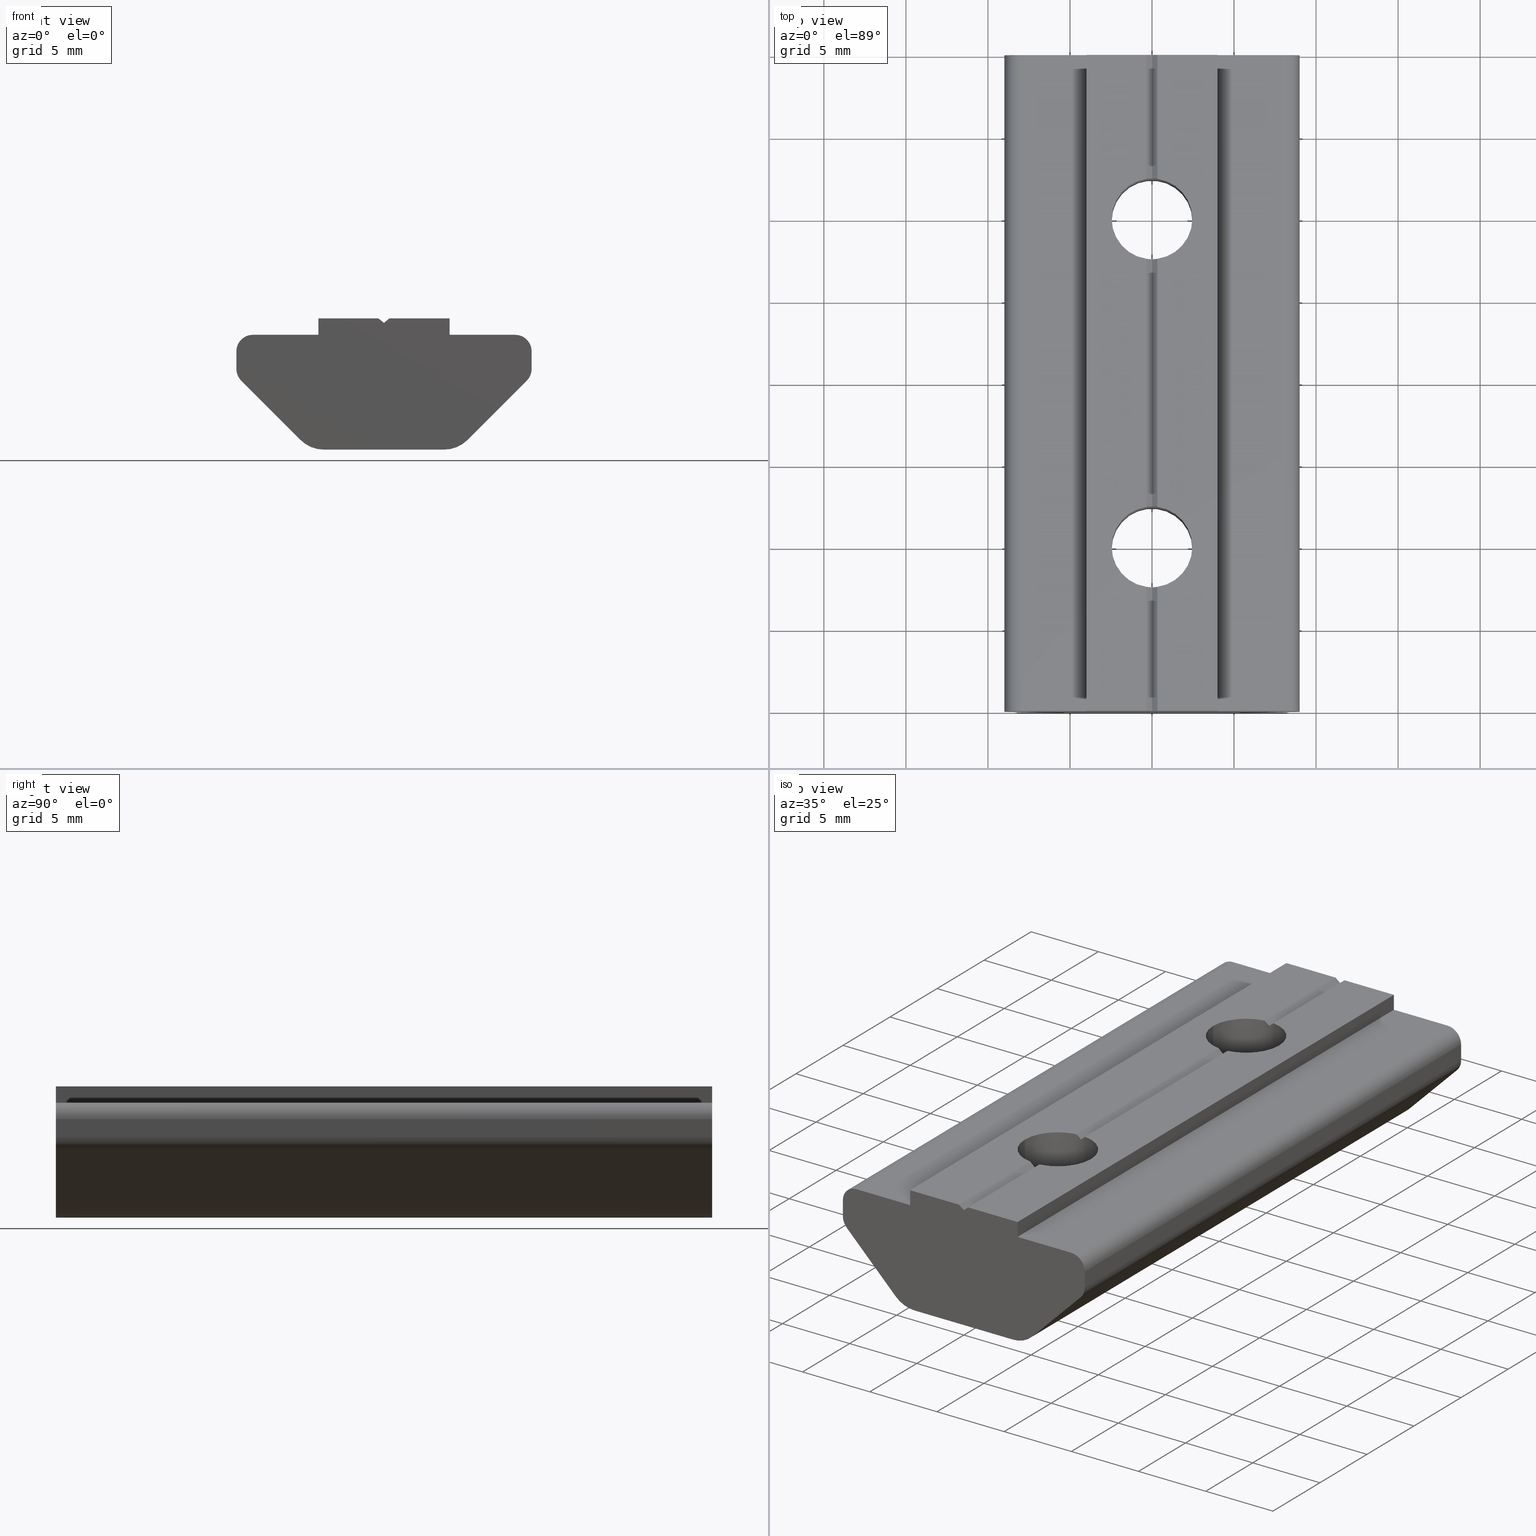
[diagram: canonical four-view strip — front | top / right | iso, engineering-drawing reading convention]
A machine part, canonical four-view strip (front | top / right | iso — engineering-drawing reading convention). The complete STEP part file that produces these views, byte-faithful:
ISO-10303-21;
HEADER;
/* Generated by software containing ST-Developer
 * from STEP Tools, Inc. (www.steptools.com) 
 */

FILE_DESCRIPTION(
/* description */ ('CURSORE ALLUM. L=40 2F M6'),
/* implementation_level */ '2;1');

FILE_NAME(
/* name */ 
'C:\\Users\\tecnico7\\Desktop\\NUOVI DISEGNI 3D\\CDDCU0000008.stp',
/* time_stamp */ '2022-11-18T11:16:16+01:00',
/* author */ ('tecnico7'),
/* organization */ (''),
/* preprocessor_version */ 'ST-DEVELOPER v18.1',
/* originating_system */ 'Autodesk Inventor 2022',
/* authorisation */ '');

FILE_SCHEMA (('AUTOMOTIVE_DESIGN { 1 0 10303 214 3 1 1 }'));
ENDSEC;

DATA;
#10=MECHANICAL_DESIGN_GEOMETRIC_PRESENTATION_REPRESENTATION('',(#13),#967);
#11=SHAPE_REPRESENTATION_RELATIONSHIP('SRR','None',#974,#12);
#12=ADVANCED_BREP_SHAPE_REPRESENTATION('',(#14),#966);
#13=STYLED_ITEM('',(#983),#14);
#14=MANIFOLD_SOLID_BREP('None',#558);
#15=FACE_BOUND('',#77,.T.);
#16=FACE_BOUND('',#78,.T.);
#17=PLANE('',#599);
#18=PLANE('',#600);
#19=PLANE('',#601);
#20=PLANE('',#602);
#21=PLANE('',#603);
#22=PLANE('',#604);
#23=PLANE('',#608);
#24=PLANE('',#612);
#25=PLANE('',#616);
#26=PLANE('',#620);
#27=PLANE('',#624);
#28=PLANE('',#628);
#29=PLANE('',#629);
#30=PLANE('',#630);
#31=PLANE('',#631);
#32=PLANE('',#632);
#33=PLANE('',#633);
#34=PLANE('',#634);
#35=PLANE('',#635);
#36=FACE_OUTER_BOUND('',#63,.T.);
#37=FACE_OUTER_BOUND('',#64,.T.);
#38=FACE_OUTER_BOUND('',#65,.T.);
#39=FACE_OUTER_BOUND('',#66,.T.);
#40=FACE_OUTER_BOUND('',#67,.T.);
#41=FACE_OUTER_BOUND('',#68,.T.);
#42=FACE_OUTER_BOUND('',#69,.T.);
#43=FACE_OUTER_BOUND('',#70,.T.);
#44=FACE_OUTER_BOUND('',#71,.T.);
#45=FACE_OUTER_BOUND('',#72,.T.);
#46=FACE_OUTER_BOUND('',#73,.T.);
#47=FACE_OUTER_BOUND('',#74,.T.);
#48=FACE_OUTER_BOUND('',#75,.T.);
#49=FACE_OUTER_BOUND('',#76,.T.);
#50=FACE_OUTER_BOUND('',#79,.T.);
#51=FACE_OUTER_BOUND('',#80,.T.);
#52=FACE_OUTER_BOUND('',#81,.T.);
#53=FACE_OUTER_BOUND('',#82,.T.);
#54=FACE_OUTER_BOUND('',#83,.T.);
#55=FACE_OUTER_BOUND('',#84,.T.);
#56=FACE_OUTER_BOUND('',#85,.T.);
#57=FACE_OUTER_BOUND('',#86,.T.);
#58=FACE_OUTER_BOUND('',#87,.T.);
#59=FACE_OUTER_BOUND('',#88,.T.);
#60=FACE_OUTER_BOUND('',#89,.T.);
#61=FACE_OUTER_BOUND('',#90,.T.);
#62=FACE_OUTER_BOUND('',#91,.T.);
#63=EDGE_LOOP('',(#361,#362,#363,#364,#365,#366,#367,#368,#369,#370));
#64=EDGE_LOOP('',(#371,#372,#373,#374,#375,#376,#377,#378,#379,#380));
#65=EDGE_LOOP('',(#381,#382,#383,#384,#385,#386,#387,#388,#389,#390));
#66=EDGE_LOOP('',(#391,#392,#393,#394));
#67=EDGE_LOOP('',(#395,#396,#397,#398));
#68=EDGE_LOOP('',(#399,#400,#401,#402));
#69=EDGE_LOOP('',(#403,#404,#405,#406));
#70=EDGE_LOOP('',(#407,#408,#409,#410));
#71=EDGE_LOOP('',(#411,#412,#413,#414));
#72=EDGE_LOOP('',(#415,#416,#417,#418));
#73=EDGE_LOOP('',(#419,#420,#421,#422));
#74=EDGE_LOOP('',(#423,#424,#425,#426));
#75=EDGE_LOOP('',(#427,#428,#429,#430));
#76=EDGE_LOOP('',(#431,#432,#433,#434));
#77=EDGE_LOOP('',(#435));
#78=EDGE_LOOP('',(#436));
#79=EDGE_LOOP('',(#437,#438,#439,#440));
#80=EDGE_LOOP('',(#441,#442,#443,#444));
#81=EDGE_LOOP('',(#445,#446,#447,#448));
#82=EDGE_LOOP('',(#449,#450,#451,#452));
#83=EDGE_LOOP('',(#453,#454,#455,#456));
#84=EDGE_LOOP('',(#457,#458,#459,#460));
#85=EDGE_LOOP('',(#461,#462,#463,#464));
#86=EDGE_LOOP('',(#465,#466,#467,#468,#469,#470,#471,#472));
#87=EDGE_LOOP('',(#473,#474,#475,#476));
#88=EDGE_LOOP('',(#477,#478,#479,#480));
#89=EDGE_LOOP('',(#481,#482,#483,#484));
#90=EDGE_LOOP('',(#485,#486,#487,#488,#489,#490,#491,#492,#493,#494,#495,
#496,#497,#498,#499,#500,#501,#502,#503));
#91=EDGE_LOOP('',(#504,#505,#506,#507,#508,#509,#510,#511,#512,#513,#514,
#515,#516,#517,#518,#519,#520,#521,#522));
#92=LINE('',#817,#145);
#93=LINE('',#835,#146);
#94=LINE('',#839,#147);
#95=LINE('',#841,#148);
#96=LINE('',#843,#149);
#97=LINE('',#845,#150);
#98=LINE('',#847,#151);
#99=LINE('',#848,#152);
#100=LINE('',#850,#153);
#101=LINE('',#852,#154);
#102=LINE('',#855,#155);
#103=LINE('',#856,#156);
#104=LINE('',#859,#157);
#105=LINE('',#860,#158);
#106=LINE('',#864,#159);
#107=LINE('',#866,#160);
#108=LINE('',#868,#161);
#109=LINE('',#869,#162);
#110=LINE('',#874,#163);
#111=LINE('',#878,#164);
#112=LINE('',#880,#165);
#113=LINE('',#881,#166);
#114=LINE('',#886,#167);
#115=LINE('',#890,#168);
#116=LINE('',#892,#169);
#117=LINE('',#893,#170);
#118=LINE('',#898,#171);
#119=LINE('',#902,#172);
#120=LINE('',#904,#173);
#121=LINE('',#905,#174);
#122=LINE('',#910,#175);
#123=LINE('',#914,#176);
#124=LINE('',#916,#177);
#125=LINE('',#917,#178);
#126=LINE('',#922,#179);
#127=LINE('',#926,#180);
#128=LINE('',#928,#181);
#129=LINE('',#929,#182);
#130=LINE('',#934,#183);
#131=LINE('',#938,#184);
#132=LINE('',#940,#185);
#133=LINE('',#941,#186);
#134=LINE('',#944,#187);
#135=LINE('',#946,#188);
#136=LINE('',#947,#189);
#137=LINE('',#950,#190);
#138=LINE('',#951,#191);
#139=LINE('',#952,#192);
#140=LINE('',#955,#193);
#141=LINE('',#956,#194);
#142=LINE('',#958,#195);
#143=LINE('',#960,#196);
#144=LINE('',#961,#197);
#145=VECTOR('',#652,2.4585);
#146=VECTOR('',#671,2.4585);
#147=VECTOR('',#678,15.0473625990607);
#148=VECTOR('',#679,7.52368129953035);
#149=VECTOR('',#680,3.65671249820966);
#150=VECTOR('',#681,40.);
#151=VECTOR('',#682,3.65671249820966);
#152=VECTOR('',#683,7.52368129953035);
#153=VECTOR('',#686,15.);
#154=VECTOR('',#689,15.0433105967146);
#155=VECTOR('',#692,7.5);
#156=VECTOR('',#693,0.439391491276567);
#157=VECTOR('',#696,7.52165529835731);
#158=VECTOR('',#697,0.427816213448289);
#159=VECTOR('',#700,3.99999911605113);
#160=VECTOR('',#701,40.);
#161=VECTOR('',#702,3.99999911605113);
#162=VECTOR('',#703,40.);
#163=VECTOR('',#708,40.);
#164=VECTOR('',#713,1.08578619895536);
#165=VECTOR('',#714,40.);
#166=VECTOR('',#715,1.08578619895536);
#167=VECTOR('',#720,40.);
#168=VECTOR('',#725,5.1213192086635);
#169=VECTOR('',#726,40.);
#170=VECTOR('',#727,5.1213192086635);
#171=VECTOR('',#732,40.);
#172=VECTOR('',#737,7.34314412585296);
#173=VECTOR('',#738,40.);
#174=VECTOR('',#739,7.34314412585296);
#175=VECTOR('',#744,40.);
#176=VECTOR('',#749,5.12131921573452);
#177=VECTOR('',#750,40.);
#178=VECTOR('',#751,5.12131921573452);
#179=VECTOR('',#756,40.);
#180=VECTOR('',#761,1.08578620197102);
#181=VECTOR('',#762,40.);
#182=VECTOR('',#763,1.08578620197102);
#183=VECTOR('',#768,40.);
#184=VECTOR('',#773,3.99999910794887);
#185=VECTOR('',#774,40.);
#186=VECTOR('',#775,3.99999910794887);
#187=VECTOR('',#778,0.999999778000075);
#188=VECTOR('',#779,40.);
#189=VECTOR('',#780,0.999999778000076);
#190=VECTOR('',#783,7.5216552983573);
#191=VECTOR('',#784,3.67165853489162);
#192=VECTOR('',#785,3.67165853489162);
#193=VECTOR('',#788,7.5);
#194=VECTOR('',#789,0.427816213448289);
#195=VECTOR('',#792,0.439391491276567);
#196=VECTOR('',#795,0.99999977799996);
#197=VECTOR('',#796,0.99999977799996);
#198=CIRCLE('',#584,2.4585);
#199=CIRCLE('',#587,2.4585);
#200=CIRCLE('',#588,2.4585);
#201=CIRCLE('',#589,2.4585);
#202=CIRCLE('',#593,2.4585);
#203=CIRCLE('',#596,2.4585);
#204=CIRCLE('',#597,2.4585);
#205=CIRCLE('',#598,2.4585);
#206=CIRCLE('',#606,0.999999782051095);
#207=CIRCLE('',#607,0.999999782051095);
#208=CIRCLE('',#610,0.999999764990546);
#209=CIRCLE('',#611,0.999999764990546);
#210=CIRCLE('',#614,1.99999952998076);
#211=CIRCLE('',#615,1.99999952998076);
#212=CIRCLE('',#618,1.99999952998079);
#213=CIRCLE('',#619,1.99999952998079);
#214=CIRCLE('',#622,0.999999764990531);
#215=CIRCLE('',#623,0.999999764990531);
#216=CIRCLE('',#626,0.999999782051127);
#217=CIRCLE('',#627,0.999999782051127);
#218=ELLIPSE('',#582,3.14676989404295,2.4585);
#219=ELLIPSE('',#583,3.20333895379445,2.4585);
#220=ELLIPSE('',#585,3.20333895379445,2.4585);
#221=ELLIPSE('',#586,3.14676989404295,2.4585);
#222=ELLIPSE('',#591,3.14676989404295,2.4585);
#223=ELLIPSE('',#592,3.20333895379445,2.4585);
#224=ELLIPSE('',#594,3.20333895379445,2.4585);
#225=ELLIPSE('',#595,3.14676989404295,2.4585);
#226=VERTEX_POINT('',#803);
#227=VERTEX_POINT('',#804);
#228=VERTEX_POINT('',#806);
#229=VERTEX_POINT('',#808);
#230=VERTEX_POINT('',#810);
#231=VERTEX_POINT('',#812);
#232=VERTEX_POINT('',#814);
#233=VERTEX_POINT('',#816);
#234=VERTEX_POINT('',#821);
#235=VERTEX_POINT('',#822);
#236=VERTEX_POINT('',#824);
#237=VERTEX_POINT('',#826);
#238=VERTEX_POINT('',#828);
#239=VERTEX_POINT('',#830);
#240=VERTEX_POINT('',#832);
#241=VERTEX_POINT('',#834);
#242=VERTEX_POINT('',#840);
#243=VERTEX_POINT('',#842);
#244=VERTEX_POINT('',#844);
#245=VERTEX_POINT('',#846);
#246=VERTEX_POINT('',#854);
#247=VERTEX_POINT('',#858);
#248=VERTEX_POINT('',#862);
#249=VERTEX_POINT('',#863);
#250=VERTEX_POINT('',#865);
#251=VERTEX_POINT('',#867);
#252=VERTEX_POINT('',#871);
#253=VERTEX_POINT('',#873);
#254=VERTEX_POINT('',#877);
#255=VERTEX_POINT('',#879);
#256=VERTEX_POINT('',#883);
#257=VERTEX_POINT('',#885);
#258=VERTEX_POINT('',#889);
#259=VERTEX_POINT('',#891);
#260=VERTEX_POINT('',#895);
#261=VERTEX_POINT('',#897);
#262=VERTEX_POINT('',#901);
#263=VERTEX_POINT('',#903);
#264=VERTEX_POINT('',#907);
#265=VERTEX_POINT('',#909);
#266=VERTEX_POINT('',#913);
#267=VERTEX_POINT('',#915);
#268=VERTEX_POINT('',#919);
#269=VERTEX_POINT('',#921);
#270=VERTEX_POINT('',#925);
#271=VERTEX_POINT('',#927);
#272=VERTEX_POINT('',#931);
#273=VERTEX_POINT('',#933);
#274=VERTEX_POINT('',#937);
#275=VERTEX_POINT('',#939);
#276=VERTEX_POINT('',#943);
#277=VERTEX_POINT('',#945);
#278=VERTEX_POINT('',#949);
#279=VERTEX_POINT('',#954);
#280=EDGE_CURVE('',#226,#227,#218,.T.);
#281=EDGE_CURVE('',#228,#226,#219,.T.);
#282=EDGE_CURVE('',#229,#228,#198,.T.);
#283=EDGE_CURVE('',#230,#229,#220,.T.);
#284=EDGE_CURVE('',#231,#230,#221,.T.);
#285=EDGE_CURVE('',#232,#231,#199,.T.);
#286=EDGE_CURVE('',#232,#233,#92,.T.);
#287=EDGE_CURVE('',#233,#233,#200,.T.);
#288=EDGE_CURVE('',#227,#232,#201,.T.);
#289=EDGE_CURVE('',#234,#235,#222,.T.);
#290=EDGE_CURVE('',#236,#234,#223,.T.);
#291=EDGE_CURVE('',#237,#236,#202,.T.);
#292=EDGE_CURVE('',#238,#237,#224,.T.);
#293=EDGE_CURVE('',#239,#238,#225,.T.);
#294=EDGE_CURVE('',#240,#239,#203,.T.);
#295=EDGE_CURVE('',#240,#241,#93,.T.);
#296=EDGE_CURVE('',#241,#241,#204,.T.);
#297=EDGE_CURVE('',#235,#240,#205,.T.);
#298=EDGE_CURVE('',#235,#231,#94,.T.);
#299=EDGE_CURVE('',#242,#239,#95,.T.);
#300=EDGE_CURVE('',#242,#243,#96,.T.);
#301=EDGE_CURVE('',#243,#244,#97,.T.);
#302=EDGE_CURVE('',#245,#244,#98,.T.);
#303=EDGE_CURVE('',#227,#245,#99,.T.);
#304=EDGE_CURVE('',#234,#230,#100,.T.);
#305=EDGE_CURVE('',#236,#229,#101,.T.);
#306=EDGE_CURVE('',#246,#238,#102,.T.);
#307=EDGE_CURVE('',#246,#242,#103,.T.);
#308=EDGE_CURVE('',#247,#237,#104,.T.);
#309=EDGE_CURVE('',#247,#246,#105,.T.);
#310=EDGE_CURVE('',#248,#249,#106,.T.);
#311=EDGE_CURVE('',#249,#250,#107,.T.);
#312=EDGE_CURVE('',#251,#250,#108,.T.);
#313=EDGE_CURVE('',#248,#251,#109,.T.);
#314=EDGE_CURVE('',#249,#252,#206,.T.);
#315=EDGE_CURVE('',#252,#253,#110,.T.);
#316=EDGE_CURVE('',#250,#253,#207,.T.);
#317=EDGE_CURVE('',#252,#254,#111,.T.);
#318=EDGE_CURVE('',#254,#255,#112,.T.);
#319=EDGE_CURVE('',#253,#255,#113,.T.);
#320=EDGE_CURVE('',#254,#256,#208,.T.);
#321=EDGE_CURVE('',#256,#257,#114,.T.);
#322=EDGE_CURVE('',#255,#257,#209,.T.);
#323=EDGE_CURVE('',#256,#258,#115,.T.);
#324=EDGE_CURVE('',#258,#259,#116,.T.);
#325=EDGE_CURVE('',#257,#259,#117,.T.);
#326=EDGE_CURVE('',#258,#260,#210,.T.);
#327=EDGE_CURVE('',#260,#261,#118,.T.);
#328=EDGE_CURVE('',#259,#261,#211,.T.);
#329=EDGE_CURVE('',#260,#262,#119,.T.);
#330=EDGE_CURVE('',#262,#263,#120,.T.);
#331=EDGE_CURVE('',#261,#263,#121,.T.);
#332=EDGE_CURVE('',#262,#264,#212,.T.);
#333=EDGE_CURVE('',#264,#265,#122,.T.);
#334=EDGE_CURVE('',#263,#265,#213,.T.);
#335=EDGE_CURVE('',#264,#266,#123,.T.);
#336=EDGE_CURVE('',#266,#267,#124,.T.);
#337=EDGE_CURVE('',#265,#267,#125,.T.);
#338=EDGE_CURVE('',#266,#268,#214,.T.);
#339=EDGE_CURVE('',#268,#269,#126,.T.);
#340=EDGE_CURVE('',#267,#269,#215,.T.);
#341=EDGE_CURVE('',#268,#270,#127,.T.);
#342=EDGE_CURVE('',#270,#271,#128,.T.);
#343=EDGE_CURVE('',#269,#271,#129,.T.);
#344=EDGE_CURVE('',#270,#272,#216,.T.);
#345=EDGE_CURVE('',#272,#273,#130,.T.);
#346=EDGE_CURVE('',#271,#273,#217,.T.);
#347=EDGE_CURVE('',#272,#274,#131,.T.);
#348=EDGE_CURVE('',#274,#275,#132,.T.);
#349=EDGE_CURVE('',#273,#275,#133,.T.);
#350=EDGE_CURVE('',#274,#276,#134,.T.);
#351=EDGE_CURVE('',#276,#277,#135,.T.);
#352=EDGE_CURVE('',#275,#277,#136,.T.);
#353=EDGE_CURVE('',#228,#278,#137,.T.);
#354=EDGE_CURVE('',#277,#278,#138,.T.);
#355=EDGE_CURVE('',#276,#247,#139,.T.);
#356=EDGE_CURVE('',#226,#279,#140,.T.);
#357=EDGE_CURVE('',#278,#279,#141,.T.);
#358=EDGE_CURVE('',#279,#245,#142,.T.);
#359=EDGE_CURVE('',#243,#248,#143,.T.);
#360=EDGE_CURVE('',#244,#251,#144,.T.);
#361=ORIENTED_EDGE('',*,*,#280,.F.);
#362=ORIENTED_EDGE('',*,*,#281,.F.);
#363=ORIENTED_EDGE('',*,*,#282,.F.);
#364=ORIENTED_EDGE('',*,*,#283,.F.);
#365=ORIENTED_EDGE('',*,*,#284,.F.);
#366=ORIENTED_EDGE('',*,*,#285,.F.);
#367=ORIENTED_EDGE('',*,*,#286,.T.);
#368=ORIENTED_EDGE('',*,*,#287,.F.);
#369=ORIENTED_EDGE('',*,*,#286,.F.);
#370=ORIENTED_EDGE('',*,*,#288,.F.);
#371=ORIENTED_EDGE('',*,*,#289,.F.);
#372=ORIENTED_EDGE('',*,*,#290,.F.);
#373=ORIENTED_EDGE('',*,*,#291,.F.);
#374=ORIENTED_EDGE('',*,*,#292,.F.);
#375=ORIENTED_EDGE('',*,*,#293,.F.);
#376=ORIENTED_EDGE('',*,*,#294,.F.);
#377=ORIENTED_EDGE('',*,*,#295,.T.);
#378=ORIENTED_EDGE('',*,*,#296,.F.);
#379=ORIENTED_EDGE('',*,*,#295,.F.);
#380=ORIENTED_EDGE('',*,*,#297,.F.);
#381=ORIENTED_EDGE('',*,*,#288,.T.);
#382=ORIENTED_EDGE('',*,*,#285,.T.);
#383=ORIENTED_EDGE('',*,*,#298,.F.);
#384=ORIENTED_EDGE('',*,*,#297,.T.);
#385=ORIENTED_EDGE('',*,*,#294,.T.);
#386=ORIENTED_EDGE('',*,*,#299,.F.);
#387=ORIENTED_EDGE('',*,*,#300,.T.);
#388=ORIENTED_EDGE('',*,*,#301,.T.);
#389=ORIENTED_EDGE('',*,*,#302,.F.);
#390=ORIENTED_EDGE('',*,*,#303,.F.);
#391=ORIENTED_EDGE('',*,*,#284,.T.);
#392=ORIENTED_EDGE('',*,*,#304,.F.);
#393=ORIENTED_EDGE('',*,*,#289,.T.);
#394=ORIENTED_EDGE('',*,*,#298,.T.);
#395=ORIENTED_EDGE('',*,*,#283,.T.);
#396=ORIENTED_EDGE('',*,*,#305,.F.);
#397=ORIENTED_EDGE('',*,*,#290,.T.);
#398=ORIENTED_EDGE('',*,*,#304,.T.);
#399=ORIENTED_EDGE('',*,*,#293,.T.);
#400=ORIENTED_EDGE('',*,*,#306,.F.);
#401=ORIENTED_EDGE('',*,*,#307,.T.);
#402=ORIENTED_EDGE('',*,*,#299,.T.);
#403=ORIENTED_EDGE('',*,*,#292,.T.);
#404=ORIENTED_EDGE('',*,*,#308,.F.);
#405=ORIENTED_EDGE('',*,*,#309,.T.);
#406=ORIENTED_EDGE('',*,*,#306,.T.);
#407=ORIENTED_EDGE('',*,*,#310,.T.);
#408=ORIENTED_EDGE('',*,*,#311,.T.);
#409=ORIENTED_EDGE('',*,*,#312,.F.);
#410=ORIENTED_EDGE('',*,*,#313,.F.);
#411=ORIENTED_EDGE('',*,*,#314,.T.);
#412=ORIENTED_EDGE('',*,*,#315,.T.);
#413=ORIENTED_EDGE('',*,*,#316,.F.);
#414=ORIENTED_EDGE('',*,*,#311,.F.);
#415=ORIENTED_EDGE('',*,*,#317,.T.);
#416=ORIENTED_EDGE('',*,*,#318,.T.);
#417=ORIENTED_EDGE('',*,*,#319,.F.);
#418=ORIENTED_EDGE('',*,*,#315,.F.);
#419=ORIENTED_EDGE('',*,*,#320,.T.);
#420=ORIENTED_EDGE('',*,*,#321,.T.);
#421=ORIENTED_EDGE('',*,*,#322,.F.);
#422=ORIENTED_EDGE('',*,*,#318,.F.);
#423=ORIENTED_EDGE('',*,*,#323,.T.);
#424=ORIENTED_EDGE('',*,*,#324,.T.);
#425=ORIENTED_EDGE('',*,*,#325,.F.);
#426=ORIENTED_EDGE('',*,*,#321,.F.);
#427=ORIENTED_EDGE('',*,*,#326,.T.);
#428=ORIENTED_EDGE('',*,*,#327,.T.);
#429=ORIENTED_EDGE('',*,*,#328,.F.);
#430=ORIENTED_EDGE('',*,*,#324,.F.);
#431=ORIENTED_EDGE('',*,*,#329,.T.);
#432=ORIENTED_EDGE('',*,*,#330,.T.);
#433=ORIENTED_EDGE('',*,*,#331,.F.);
#434=ORIENTED_EDGE('',*,*,#327,.F.);
#435=ORIENTED_EDGE('',*,*,#287,.T.);
#436=ORIENTED_EDGE('',*,*,#296,.T.);
#437=ORIENTED_EDGE('',*,*,#332,.T.);
#438=ORIENTED_EDGE('',*,*,#333,.T.);
#439=ORIENTED_EDGE('',*,*,#334,.F.);
#440=ORIENTED_EDGE('',*,*,#330,.F.);
#441=ORIENTED_EDGE('',*,*,#335,.T.);
#442=ORIENTED_EDGE('',*,*,#336,.T.);
#443=ORIENTED_EDGE('',*,*,#337,.F.);
#444=ORIENTED_EDGE('',*,*,#333,.F.);
#445=ORIENTED_EDGE('',*,*,#338,.T.);
#446=ORIENTED_EDGE('',*,*,#339,.T.);
#447=ORIENTED_EDGE('',*,*,#340,.F.);
#448=ORIENTED_EDGE('',*,*,#336,.F.);
#449=ORIENTED_EDGE('',*,*,#341,.T.);
#450=ORIENTED_EDGE('',*,*,#342,.T.);
#451=ORIENTED_EDGE('',*,*,#343,.F.);
#452=ORIENTED_EDGE('',*,*,#339,.F.);
#453=ORIENTED_EDGE('',*,*,#344,.T.);
#454=ORIENTED_EDGE('',*,*,#345,.T.);
#455=ORIENTED_EDGE('',*,*,#346,.F.);
#456=ORIENTED_EDGE('',*,*,#342,.F.);
#457=ORIENTED_EDGE('',*,*,#347,.T.);
#458=ORIENTED_EDGE('',*,*,#348,.T.);
#459=ORIENTED_EDGE('',*,*,#349,.F.);
#460=ORIENTED_EDGE('',*,*,#345,.F.);
#461=ORIENTED_EDGE('',*,*,#350,.T.);
#462=ORIENTED_EDGE('',*,*,#351,.T.);
#463=ORIENTED_EDGE('',*,*,#352,.F.);
#464=ORIENTED_EDGE('',*,*,#348,.F.);
#465=ORIENTED_EDGE('',*,*,#282,.T.);
#466=ORIENTED_EDGE('',*,*,#353,.T.);
#467=ORIENTED_EDGE('',*,*,#354,.F.);
#468=ORIENTED_EDGE('',*,*,#351,.F.);
#469=ORIENTED_EDGE('',*,*,#355,.T.);
#470=ORIENTED_EDGE('',*,*,#308,.T.);
#471=ORIENTED_EDGE('',*,*,#291,.T.);
#472=ORIENTED_EDGE('',*,*,#305,.T.);
#473=ORIENTED_EDGE('',*,*,#281,.T.);
#474=ORIENTED_EDGE('',*,*,#356,.T.);
#475=ORIENTED_EDGE('',*,*,#357,.F.);
#476=ORIENTED_EDGE('',*,*,#353,.F.);
#477=ORIENTED_EDGE('',*,*,#280,.T.);
#478=ORIENTED_EDGE('',*,*,#303,.T.);
#479=ORIENTED_EDGE('',*,*,#358,.F.);
#480=ORIENTED_EDGE('',*,*,#356,.F.);
#481=ORIENTED_EDGE('',*,*,#359,.T.);
#482=ORIENTED_EDGE('',*,*,#313,.T.);
#483=ORIENTED_EDGE('',*,*,#360,.F.);
#484=ORIENTED_EDGE('',*,*,#301,.F.);
#485=ORIENTED_EDGE('',*,*,#359,.F.);
#486=ORIENTED_EDGE('',*,*,#300,.F.);
#487=ORIENTED_EDGE('',*,*,#307,.F.);
#488=ORIENTED_EDGE('',*,*,#309,.F.);
#489=ORIENTED_EDGE('',*,*,#355,.F.);
#490=ORIENTED_EDGE('',*,*,#350,.F.);
#491=ORIENTED_EDGE('',*,*,#347,.F.);
#492=ORIENTED_EDGE('',*,*,#344,.F.);
#493=ORIENTED_EDGE('',*,*,#341,.F.);
#494=ORIENTED_EDGE('',*,*,#338,.F.);
#495=ORIENTED_EDGE('',*,*,#335,.F.);
#496=ORIENTED_EDGE('',*,*,#332,.F.);
#497=ORIENTED_EDGE('',*,*,#329,.F.);
#498=ORIENTED_EDGE('',*,*,#326,.F.);
#499=ORIENTED_EDGE('',*,*,#323,.F.);
#500=ORIENTED_EDGE('',*,*,#320,.F.);
#501=ORIENTED_EDGE('',*,*,#317,.F.);
#502=ORIENTED_EDGE('',*,*,#314,.F.);
#503=ORIENTED_EDGE('',*,*,#310,.F.);
#504=ORIENTED_EDGE('',*,*,#312,.T.);
#505=ORIENTED_EDGE('',*,*,#316,.T.);
#506=ORIENTED_EDGE('',*,*,#319,.T.);
#507=ORIENTED_EDGE('',*,*,#322,.T.);
#508=ORIENTED_EDGE('',*,*,#325,.T.);
#509=ORIENTED_EDGE('',*,*,#328,.T.);
#510=ORIENTED_EDGE('',*,*,#331,.T.);
#511=ORIENTED_EDGE('',*,*,#334,.T.);
#512=ORIENTED_EDGE('',*,*,#337,.T.);
#513=ORIENTED_EDGE('',*,*,#340,.T.);
#514=ORIENTED_EDGE('',*,*,#343,.T.);
#515=ORIENTED_EDGE('',*,*,#346,.T.);
#516=ORIENTED_EDGE('',*,*,#349,.T.);
#517=ORIENTED_EDGE('',*,*,#352,.T.);
#518=ORIENTED_EDGE('',*,*,#354,.T.);
#519=ORIENTED_EDGE('',*,*,#357,.T.);
#520=ORIENTED_EDGE('',*,*,#358,.T.);
#521=ORIENTED_EDGE('',*,*,#302,.T.);
#522=ORIENTED_EDGE('',*,*,#360,.T.);
#523=CYLINDRICAL_SURFACE('',#581,2.4585);
#524=CYLINDRICAL_SURFACE('',#590,2.4585);
#525=CYLINDRICAL_SURFACE('',#605,0.999999782051095);
#526=CYLINDRICAL_SURFACE('',#609,0.999999764990546);
#527=CYLINDRICAL_SURFACE('',#613,1.99999952998076);
#528=CYLINDRICAL_SURFACE('',#617,1.99999952998079);
#529=CYLINDRICAL_SURFACE('',#621,0.999999764990531);
#530=CYLINDRICAL_SURFACE('',#625,0.999999782051127);
#531=ADVANCED_FACE('',(#36),#523,.F.);
#532=ADVANCED_FACE('',(#37),#524,.F.);
#533=ADVANCED_FACE('',(#38),#17,.T.);
#534=ADVANCED_FACE('',(#39),#18,.T.);
#535=ADVANCED_FACE('',(#40),#19,.T.);
#536=ADVANCED_FACE('',(#41),#20,.T.);
#537=ADVANCED_FACE('',(#42),#21,.T.);
#538=ADVANCED_FACE('',(#43),#22,.T.);
#539=ADVANCED_FACE('',(#44),#525,.T.);
#540=ADVANCED_FACE('',(#45),#23,.T.);
#541=ADVANCED_FACE('',(#46),#526,.T.);
#542=ADVANCED_FACE('',(#47),#24,.T.);
#543=ADVANCED_FACE('',(#48),#527,.T.);
#544=ADVANCED_FACE('',(#49,#15,#16),#25,.T.);
#545=ADVANCED_FACE('',(#50),#528,.T.);
#546=ADVANCED_FACE('',(#51),#26,.T.);
#547=ADVANCED_FACE('',(#52),#529,.T.);
#548=ADVANCED_FACE('',(#53),#27,.T.);
#549=ADVANCED_FACE('',(#54),#530,.T.);
#550=ADVANCED_FACE('',(#55),#28,.T.);
#551=ADVANCED_FACE('',(#56),#29,.T.);
#552=ADVANCED_FACE('',(#57),#30,.T.);
#553=ADVANCED_FACE('',(#58),#31,.T.);
#554=ADVANCED_FACE('',(#59),#32,.T.);
#555=ADVANCED_FACE('',(#60),#33,.T.);
#556=ADVANCED_FACE('',(#61),#34,.F.);
#557=ADVANCED_FACE('',(#62),#35,.T.);
#558=CLOSED_SHELL('',(#531,#532,#533,#534,#535,#536,#537,#538,#539,#540,
#541,#542,#543,#544,#545,#546,#547,#548,#549,#550,#551,#552,#553,#554,#555,
#556,#557));
#559=DERIVED_UNIT_ELEMENT(#562,1.);
#560=DERIVED_UNIT_ELEMENT(#969,-3.);
#561=DIMENSIONAL_EXPONENTS(1.,0.,0.,0.,0.,0.,0.);
#562=(
CONVERSION_BASED_UNIT('gram',#564)
MASS_UNIT()
NAMED_UNIT(#561)
);
#563=(
MASS_UNIT()
NAMED_UNIT(*)
SI_UNIT(.KILO.,.GRAM.)
);
#564=MASS_MEASURE_WITH_UNIT(MASS_MEASURE(0.001),#563);
#565=DERIVED_UNIT((#559,#560));
#566=MEASURE_REPRESENTATION_ITEM('density measure',
POSITIVE_RATIO_MEASURE(2.71),#565);
#567=PROPERTY_DEFINITION_REPRESENTATION(#572,#569);
#568=PROPERTY_DEFINITION_REPRESENTATION(#573,#570);
#569=REPRESENTATION('material name',(#571),#966);
#570=REPRESENTATION('density',(#566),#966);
#571=DESCRIPTIVE_REPRESENTATION_ITEM('ALLUMINIO','ALLUMINIO');
#572=PROPERTY_DEFINITION('material property','material name',#976);
#573=PROPERTY_DEFINITION('material property','density of part',#976);
#574=DATE_TIME_ROLE('creation_date');
#575=APPLIED_DATE_AND_TIME_ASSIGNMENT(#576,#574,(#976));
#576=DATE_AND_TIME(#577,#578);
#577=CALENDAR_DATE(2012,13,1);
#578=LOCAL_TIME(0,0,0.,#579);
#579=COORDINATED_UNIVERSAL_TIME_OFFSET(0,0,.BEHIND.);
#580=AXIS2_PLACEMENT_3D('placement',#801,#636,#637);
#581=AXIS2_PLACEMENT_3D('',#802,#638,#639);
#582=AXIS2_PLACEMENT_3D('',#805,#640,#641);
#583=AXIS2_PLACEMENT_3D('',#807,#642,#643);
#584=AXIS2_PLACEMENT_3D('',#809,#644,#645);
#585=AXIS2_PLACEMENT_3D('',#811,#646,#647);
#586=AXIS2_PLACEMENT_3D('',#813,#648,#649);
#587=AXIS2_PLACEMENT_3D('',#815,#650,#651);
#588=AXIS2_PLACEMENT_3D('',#818,#653,#654);
#589=AXIS2_PLACEMENT_3D('',#819,#655,#656);
#590=AXIS2_PLACEMENT_3D('',#820,#657,#658);
#591=AXIS2_PLACEMENT_3D('',#823,#659,#660);
#592=AXIS2_PLACEMENT_3D('',#825,#661,#662);
#593=AXIS2_PLACEMENT_3D('',#827,#663,#664);
#594=AXIS2_PLACEMENT_3D('',#829,#665,#666);
#595=AXIS2_PLACEMENT_3D('',#831,#667,#668);
#596=AXIS2_PLACEMENT_3D('',#833,#669,#670);
#597=AXIS2_PLACEMENT_3D('',#836,#672,#673);
#598=AXIS2_PLACEMENT_3D('',#837,#674,#675);
#599=AXIS2_PLACEMENT_3D('',#838,#676,#677);
#600=AXIS2_PLACEMENT_3D('',#849,#684,#685);
#601=AXIS2_PLACEMENT_3D('',#851,#687,#688);
#602=AXIS2_PLACEMENT_3D('',#853,#690,#691);
#603=AXIS2_PLACEMENT_3D('',#857,#694,#695);
#604=AXIS2_PLACEMENT_3D('',#861,#698,#699);
#605=AXIS2_PLACEMENT_3D('',#870,#704,#705);
#606=AXIS2_PLACEMENT_3D('',#872,#706,#707);
#607=AXIS2_PLACEMENT_3D('',#875,#709,#710);
#608=AXIS2_PLACEMENT_3D('',#876,#711,#712);
#609=AXIS2_PLACEMENT_3D('',#882,#716,#717);
#610=AXIS2_PLACEMENT_3D('',#884,#718,#719);
#611=AXIS2_PLACEMENT_3D('',#887,#721,#722);
#612=AXIS2_PLACEMENT_3D('',#888,#723,#724);
#613=AXIS2_PLACEMENT_3D('',#894,#728,#729);
#614=AXIS2_PLACEMENT_3D('',#896,#730,#731);
#615=AXIS2_PLACEMENT_3D('',#899,#733,#734);
#616=AXIS2_PLACEMENT_3D('',#900,#735,#736);
#617=AXIS2_PLACEMENT_3D('',#906,#740,#741);
#618=AXIS2_PLACEMENT_3D('',#908,#742,#743);
#619=AXIS2_PLACEMENT_3D('',#911,#745,#746);
#620=AXIS2_PLACEMENT_3D('',#912,#747,#748);
#621=AXIS2_PLACEMENT_3D('',#918,#752,#753);
#622=AXIS2_PLACEMENT_3D('',#920,#754,#755);
#623=AXIS2_PLACEMENT_3D('',#923,#757,#758);
#624=AXIS2_PLACEMENT_3D('',#924,#759,#760);
#625=AXIS2_PLACEMENT_3D('',#930,#764,#765);
#626=AXIS2_PLACEMENT_3D('',#932,#766,#767);
#627=AXIS2_PLACEMENT_3D('',#935,#769,#770);
#628=AXIS2_PLACEMENT_3D('',#936,#771,#772);
#629=AXIS2_PLACEMENT_3D('',#942,#776,#777);
#630=AXIS2_PLACEMENT_3D('',#948,#781,#782);
#631=AXIS2_PLACEMENT_3D('',#953,#786,#787);
#632=AXIS2_PLACEMENT_3D('',#957,#790,#791);
#633=AXIS2_PLACEMENT_3D('',#959,#793,#794);
#634=AXIS2_PLACEMENT_3D('',#962,#797,#798);
#635=AXIS2_PLACEMENT_3D('',#963,#799,#800);
#636=DIRECTION('axis',(0.,0.,1.));
#637=DIRECTION('refdir',(1.,0.,0.));
#638=DIRECTION('center_axis',(0.,0.,1.));
#639=DIRECTION('ref_axis',(1.,0.,0.));
#640=DIRECTION('center_axis',(-0.624184046708014,-4.783944E-17,-0.781277336056287));
#641=DIRECTION('ref_axis',(0.781277336056287,0.,-0.624184046708014));
#642=DIRECTION('center_axis',(0.641072358860515,-4.699462E-17,-0.767480443206871));
#643=DIRECTION('ref_axis',(0.767480443206871,0.,0.641072358860515));
#644=DIRECTION('center_axis',(2.723567E-9,-6.123234E-17,-1.));
#645=DIRECTION('ref_axis',(1.,0.,2.723567E-9));
#646=DIRECTION('center_axis',(0.641072358860515,-4.699462E-17,-0.767480443206871));
#647=DIRECTION('ref_axis',(0.767480443206871,0.,0.641072358860515));
#648=DIRECTION('center_axis',(-0.624184046708014,-4.783944E-17,-0.781277336056287));
#649=DIRECTION('ref_axis',(0.781277336056287,0.,-0.624184046708014));
#650=DIRECTION('center_axis',(0.,0.,-1.));
#651=DIRECTION('ref_axis',(1.,0.,0.));
#652=DIRECTION('',(0.,0.,-1.));
#653=DIRECTION('center_axis',(0.,0.,1.));
#654=DIRECTION('ref_axis',(1.,0.,0.));
#655=DIRECTION('center_axis',(0.,0.,-1.));
#656=DIRECTION('ref_axis',(1.,0.,0.));
#657=DIRECTION('center_axis',(0.,0.,1.));
#658=DIRECTION('ref_axis',(1.,0.,0.));
#659=DIRECTION('center_axis',(-0.624184046708014,-4.783944E-17,-0.781277336056287));
#660=DIRECTION('ref_axis',(0.781277336056287,0.,-0.624184046708014));
#661=DIRECTION('center_axis',(0.641072358860515,-4.699462E-17,-0.767480443206871));
#662=DIRECTION('ref_axis',(0.767480443206871,0.,0.641072358860515));
#663=DIRECTION('center_axis',(2.723567E-9,-6.123234E-17,-1.));
#664=DIRECTION('ref_axis',(1.,0.,2.723567E-9));
#665=DIRECTION('center_axis',(0.641072358860515,-4.699462E-17,-0.767480443206871));
#666=DIRECTION('ref_axis',(0.767480443206871,0.,0.641072358860515));
#667=DIRECTION('center_axis',(-0.624184046708014,-4.783944E-17,-0.781277336056287));
#668=DIRECTION('ref_axis',(0.781277336056287,0.,-0.624184046708014));
#669=DIRECTION('center_axis',(0.,0.,-1.));
#670=DIRECTION('ref_axis',(1.,0.,0.));
#671=DIRECTION('',(0.,0.,-1.));
#672=DIRECTION('center_axis',(0.,0.,1.));
#673=DIRECTION('ref_axis',(1.,0.,0.));
#674=DIRECTION('center_axis',(0.,0.,-1.));
#675=DIRECTION('ref_axis',(1.,0.,0.));
#676=DIRECTION('center_axis',(0.,0.,1.));
#677=DIRECTION('ref_axis',(1.,0.,0.));
#678=DIRECTION('',(0.,-1.,0.));
#679=DIRECTION('',(0.,-1.,0.));
#680=DIRECTION('',(-1.,0.,0.));
#681=DIRECTION('',(0.,-1.,0.));
#682=DIRECTION('',(-1.,0.,0.));
#683=DIRECTION('',(0.,-1.,0.));
#684=DIRECTION('center_axis',(0.624184046708014,4.783944E-17,0.781277336056287));
#685=DIRECTION('ref_axis',(0.781277336056287,0.,-0.624184046708014));
#686=DIRECTION('',(0.,-1.,0.));
#687=DIRECTION('center_axis',(-0.641072358860515,4.699462E-17,0.767480443206871));
#688=DIRECTION('ref_axis',(0.767480443206871,0.,0.641072358860515));
#689=DIRECTION('',(0.,-1.,0.));
#690=DIRECTION('center_axis',(0.624184046708014,4.783944E-17,0.781277336056287));
#691=DIRECTION('ref_axis',(0.781277336056287,0.,-0.624184046708014));
#692=DIRECTION('',(0.,-1.,0.));
#693=DIRECTION('',(-0.781277336056287,0.,0.624184046708014));
#694=DIRECTION('center_axis',(-0.641072358860515,4.699462E-17,0.767480443206871));
#695=DIRECTION('ref_axis',(0.767480443206871,0.,0.641072358860515));
#696=DIRECTION('',(0.,-1.,0.));
#697=DIRECTION('',(-0.767480443206871,0.,-0.641072358860515));
#698=DIRECTION('center_axis',(0.,0.,1.));
#699=DIRECTION('ref_axis',(1.,0.,0.));
#700=DIRECTION('',(-1.,0.,0.));
#701=DIRECTION('',(0.,-1.,0.));
#702=DIRECTION('',(-1.,0.,0.));
#703=DIRECTION('',(0.,-1.,0.));
#704=DIRECTION('center_axis',(0.,-1.,0.));
#705=DIRECTION('ref_axis',(1.,0.,0.));
#706=DIRECTION('center_axis',(0.,-1.,0.));
#707=DIRECTION('ref_axis',(1.,0.,0.));
#708=DIRECTION('',(0.,-1.,0.));
#709=DIRECTION('center_axis',(0.,-1.,0.));
#710=DIRECTION('ref_axis',(1.,0.,0.));
#711=DIRECTION('center_axis',(-1.,0.,0.));
#712=DIRECTION('ref_axis',(0.,0.,1.));
#713=DIRECTION('',(0.,0.,-1.));
#714=DIRECTION('',(0.,-1.,0.));
#715=DIRECTION('',(0.,0.,-1.));
#716=DIRECTION('center_axis',(0.,-1.,0.));
#717=DIRECTION('ref_axis',(-0.923879531736151,0.,-0.382683434236432));
#718=DIRECTION('center_axis',(0.,-1.,0.));
#719=DIRECTION('ref_axis',(1.,0.,0.));
#720=DIRECTION('',(0.,-1.,0.));
#721=DIRECTION('center_axis',(0.,-1.,0.));
#722=DIRECTION('ref_axis',(1.,0.,0.));
#723=DIRECTION('center_axis',(-0.707106782162851,-4.32978E-17,-0.707106780210244));
#724=DIRECTION('ref_axis',(-0.707106780210244,0.,0.707106782162851));
#725=DIRECTION('',(0.707106780210244,0.,-0.707106782162851));
#726=DIRECTION('',(0.,-1.,0.));
#727=DIRECTION('',(0.707106780210244,0.,-0.707106782162851));
#728=DIRECTION('center_axis',(0.,-1.,0.));
#729=DIRECTION('ref_axis',(1.,0.,0.));
#730=DIRECTION('center_axis',(0.,-1.,0.));
#731=DIRECTION('ref_axis',(1.,0.,0.));
#732=DIRECTION('',(0.,-1.,0.));
#733=DIRECTION('center_axis',(0.,-1.,0.));
#734=DIRECTION('ref_axis',(1.,0.,0.));
#735=DIRECTION('center_axis',(0.,0.,-1.));
#736=DIRECTION('ref_axis',(-1.,0.,0.));
#737=DIRECTION('',(1.,0.,0.));
#738=DIRECTION('',(0.,-1.,0.));
#739=DIRECTION('',(1.,0.,0.));
#740=DIRECTION('center_axis',(0.,-1.,0.));
#741=DIRECTION('ref_axis',(1.,0.,0.));
#742=DIRECTION('center_axis',(0.,-1.,0.));
#743=DIRECTION('ref_axis',(1.,0.,0.));
#744=DIRECTION('',(0.,-1.,0.));
#745=DIRECTION('center_axis',(0.,-1.,0.));
#746=DIRECTION('ref_axis',(1.,0.,0.));
#747=DIRECTION('center_axis',(0.707106781186546,-4.32978E-17,-0.707106781186549));
#748=DIRECTION('ref_axis',(-0.707106781186549,0.,-0.707106781186546));
#749=DIRECTION('',(0.707106781186549,0.,0.707106781186546));
#750=DIRECTION('',(0.,-1.,0.));
#751=DIRECTION('',(0.707106781186549,0.,0.707106781186546));
#752=DIRECTION('center_axis',(0.,-1.,0.));
#753=DIRECTION('ref_axis',(1.,0.,0.));
#754=DIRECTION('center_axis',(0.,-1.,0.));
#755=DIRECTION('ref_axis',(1.,0.,0.));
#756=DIRECTION('',(0.,-1.,0.));
#757=DIRECTION('center_axis',(0.,-1.,0.));
#758=DIRECTION('ref_axis',(1.,0.,0.));
#759=DIRECTION('center_axis',(1.,0.,0.));
#760=DIRECTION('ref_axis',(0.,0.,-1.));
#761=DIRECTION('',(0.,0.,1.));
#762=DIRECTION('',(0.,-1.,0.));
#763=DIRECTION('',(0.,0.,1.));
#764=DIRECTION('center_axis',(0.,-1.,0.));
#765=DIRECTION('ref_axis',(1.,0.,0.));
#766=DIRECTION('center_axis',(0.,-1.,0.));
#767=DIRECTION('ref_axis',(1.,0.,0.));
#768=DIRECTION('',(0.,-1.,0.));
#769=DIRECTION('center_axis',(0.,-1.,0.));
#770=DIRECTION('ref_axis',(1.,0.,0.));
#771=DIRECTION('center_axis',(0.,0.,1.));
#772=DIRECTION('ref_axis',(1.,0.,0.));
#773=DIRECTION('',(-1.,0.,0.));
#774=DIRECTION('',(0.,-1.,0.));
#775=DIRECTION('',(-1.,0.,0.));
#776=DIRECTION('center_axis',(1.,0.,0.));
#777=DIRECTION('ref_axis',(0.,0.,-1.));
#778=DIRECTION('',(0.,0.,1.));
#779=DIRECTION('',(0.,-1.,0.));
#780=DIRECTION('',(0.,0.,1.));
#781=DIRECTION('center_axis',(-2.723567E-9,6.123234E-17,1.));
#782=DIRECTION('ref_axis',(1.,0.,2.723567E-9));
#783=DIRECTION('',(0.,-1.,0.));
#784=DIRECTION('',(-1.,0.,-2.72356715743994E-9));
#785=DIRECTION('',(-1.,0.,-2.72356685506351E-9));
#786=DIRECTION('center_axis',(-0.641072358860515,4.699462E-17,0.767480443206871));
#787=DIRECTION('ref_axis',(0.767480443206871,0.,0.641072358860515));
#788=DIRECTION('',(0.,-1.,0.));
#789=DIRECTION('',(-0.767480443206871,0.,-0.641072358860515));
#790=DIRECTION('center_axis',(0.624184046708014,4.783944E-17,0.781277336056287));
#791=DIRECTION('ref_axis',(0.781277336056287,0.,-0.624184046708014));
#792=DIRECTION('',(-0.781277336056286,0.,0.624184046708014));
#793=DIRECTION('center_axis',(-1.,0.,0.));
#794=DIRECTION('ref_axis',(0.,0.,1.));
#795=DIRECTION('',(0.,0.,-1.));
#796=DIRECTION('',(0.,0.,-1.));
#797=DIRECTION('center_axis',(0.,-1.,0.));
#798=DIRECTION('ref_axis',(0.,0.,-1.));
#799=DIRECTION('center_axis',(0.,-1.,0.));
#800=DIRECTION('ref_axis',(0.,0.,-1.));
#801=CARTESIAN_POINT('',(0.,0.,0.));
#802=CARTESIAN_POINT('Origin',(0.,0.,-36.5869934551465));
#803=CARTESIAN_POINT('',(8.015661E-9,-2.4585,7.72573707488596));
#804=CARTESIAN_POINT('',(-0.343286605774692,-2.43441503369818,7.99999823400003));
#805=CARTESIAN_POINT('Origin',(0.,0.,7.72573708128989));
#806=CARTESIAN_POINT('',(0.328340585124039,-2.43647587924863,7.99999822400003));
#807=CARTESIAN_POINT('Origin',(0.,0.,7.72573706819052));
#808=CARTESIAN_POINT('',(0.328340585124039,2.43647587924863,7.99999822400002));
#809=CARTESIAN_POINT('Origin',(0.,0.,7.99999822310577));
#810=CARTESIAN_POINT('',(8.015661E-9,2.4585,7.72573707488596));
#811=CARTESIAN_POINT('Origin',(0.,0.,7.72573706819052));
#812=CARTESIAN_POINT('',(-0.343286605774692,2.43441503369818,7.99999823400003));
#813=CARTESIAN_POINT('Origin',(0.,0.,7.72573708128989));
#814=CARTESIAN_POINT('',(-2.4585,-3.01079415570377E-16,7.99999823400003));
#815=CARTESIAN_POINT('Origin',(0.,0.,7.99999823400003));
#816=CARTESIAN_POINT('',(-2.4585,-3.01079415570377E-16,0.));
#817=CARTESIAN_POINT('',(-2.4585,-3.01079415570377E-16,-36.5869934551465));
#818=CARTESIAN_POINT('Origin',(0.,0.,0.));
#819=CARTESIAN_POINT('Origin',(0.,0.,7.99999823400003));
#820=CARTESIAN_POINT('Origin',(0.,20.,-36.5869934551465));
#821=CARTESIAN_POINT('',(8.015661E-9,17.5415,7.72573707488596));
#822=CARTESIAN_POINT('',(-0.343286605774693,17.5655849663018,7.99999823400003));
#823=CARTESIAN_POINT('Origin',(0.,20.,7.72573708128989));
#824=CARTESIAN_POINT('',(0.328340585124039,17.5635241207514,7.99999822400002));
#825=CARTESIAN_POINT('Origin',(0.,20.,7.72573706819051));
#826=CARTESIAN_POINT('',(0.328340585124039,22.4364758792486,7.99999822400002));
#827=CARTESIAN_POINT('Origin',(0.,20.,7.99999822310577));
#828=CARTESIAN_POINT('',(8.015661E-9,22.4585,7.72573707488595));
#829=CARTESIAN_POINT('Origin',(0.,20.,7.72573706819051));
#830=CARTESIAN_POINT('',(-0.343286605774694,22.4344150336982,7.99999823400003));
#831=CARTESIAN_POINT('Origin',(0.,20.,7.72573708128989));
#832=CARTESIAN_POINT('',(-2.4585,20.,7.99999823400003));
#833=CARTESIAN_POINT('Origin',(0.,20.,7.99999823400003));
#834=CARTESIAN_POINT('',(-2.4585,20.,0.));
#835=CARTESIAN_POINT('',(-2.4585,20.,-36.5869934551465));
#836=CARTESIAN_POINT('Origin',(0.,20.,0.));
#837=CARTESIAN_POINT('Origin',(0.,20.,7.99999823400003));
#838=CARTESIAN_POINT('Origin',(-0.343286605774694,30.,7.99999823400003));
#839=CARTESIAN_POINT('',(-0.343286605774694,17.5236812995304,7.99999823400003));
#840=CARTESIAN_POINT('',(-0.343286605774694,30.,7.99999823400003));
#841=CARTESIAN_POINT('',(-0.343286605774694,30.,7.99999823400003));
#842=CARTESIAN_POINT('',(-3.99999910398435,30.,7.99999823400003));
#843=CARTESIAN_POINT('',(-0.343286605774694,30.,7.99999823400003));
#844=CARTESIAN_POINT('',(-3.99999910398435,-10.,7.99999823400003));
#845=CARTESIAN_POINT('',(-3.99999910398435,30.,7.99999823400003));
#846=CARTESIAN_POINT('',(-0.343286605774694,-10.,7.99999823400003));
#847=CARTESIAN_POINT('',(-0.343286605774694,-10.,7.99999823400003));
#848=CARTESIAN_POINT('',(-0.343286605774694,-2.47631870046965,7.99999823400003));
#849=CARTESIAN_POINT('Origin',(8.015661E-9,30.,7.72573707488595));
#850=CARTESIAN_POINT('',(8.015661E-9,17.5,7.72573707488596));
#851=CARTESIAN_POINT('Origin',(0.328340585124039,30.,7.99999822400002));
#852=CARTESIAN_POINT('',(0.328340585124039,17.5216552983573,7.99999822400002));
#853=CARTESIAN_POINT('Origin',(8.015661E-9,30.,7.72573707488595));
#854=CARTESIAN_POINT('',(8.015661E-9,30.,7.72573707488595));
#855=CARTESIAN_POINT('',(8.015661E-9,30.,7.72573707488595));
#856=CARTESIAN_POINT('',(8.015661E-9,30.,7.72573707488595));
#857=CARTESIAN_POINT('Origin',(0.328340585124039,30.,7.99999822400002));
#858=CARTESIAN_POINT('',(0.328340585124039,30.,7.99999822400002));
#859=CARTESIAN_POINT('',(0.328340585124039,30.,7.99999822400002));
#860=CARTESIAN_POINT('',(0.328340585124039,30.,7.99999822400002));
#861=CARTESIAN_POINT('Origin',(-3.99999910398435,30.,6.99999845600007));
#862=CARTESIAN_POINT('',(-3.99999910398435,30.,6.99999845600007));
#863=CARTESIAN_POINT('',(-7.99999822003548,30.,6.99999845599995));
#864=CARTESIAN_POINT('',(-3.99999910398435,30.,6.99999845600007));
#865=CARTESIAN_POINT('',(-7.99999822003548,-10.,6.99999845599996));
#866=CARTESIAN_POINT('',(-7.99999822003548,30.,6.99999845599995));
#867=CARTESIAN_POINT('',(-3.99999910398435,-10.,6.99999845600007));
#868=CARTESIAN_POINT('',(-3.99999910398435,-10.,6.99999845600007));
#869=CARTESIAN_POINT('',(-3.99999910398435,30.,6.99999845600007));
#870=CARTESIAN_POINT('Origin',(-7.99999821193325,30.,5.99999867394888));
#871=CARTESIAN_POINT('',(-8.99999799398434,30.,5.999998678));
#872=CARTESIAN_POINT('Origin',(-7.99999821193325,30.,5.99999867394888));
#873=CARTESIAN_POINT('',(-8.99999799398434,-10.,5.999998678));
#874=CARTESIAN_POINT('',(-8.99999799398434,30.,5.999998678));
#875=CARTESIAN_POINT('Origin',(-7.99999821193325,-10.,5.99999867394888));
#876=CARTESIAN_POINT('Origin',(-8.99999799398434,30.,5.999998678));
#877=CARTESIAN_POINT('',(-8.99999799398435,30.,4.91421247904463));
#878=CARTESIAN_POINT('',(-8.99999799398434,30.,5.999998678));
#879=CARTESIAN_POINT('',(-8.99999799398435,-10.,4.91421247904464));
#880=CARTESIAN_POINT('',(-8.99999799398435,30.,4.91421247904463));
#881=CARTESIAN_POINT('',(-8.99999799398434,-10.,5.999998678));
#882=CARTESIAN_POINT('Origin',(-7.9999982289938,30.,4.91421247602898));
#883=CARTESIAN_POINT('',(-8.70710483900666,30.,4.20710585602228));
#884=CARTESIAN_POINT('Origin',(-7.9999982289938,30.,4.91421247602898));
#885=CARTESIAN_POINT('',(-8.70710483900666,-10.,4.20710585602228));
#886=CARTESIAN_POINT('',(-8.70710483900666,30.,4.20710585602228));
#887=CARTESIAN_POINT('Origin',(-7.9999982289938,-10.,4.91421247602898));
#888=CARTESIAN_POINT('Origin',(-8.70710483900666,30.,4.20710585602228));
#889=CARTESIAN_POINT('',(-5.08578530293974,30.,0.585786309955436));
#890=CARTESIAN_POINT('',(-8.70710483900666,30.,4.20710585602228));
#891=CARTESIAN_POINT('',(-5.08578530293974,-10.,0.585786309955439));
#892=CARTESIAN_POINT('',(-5.08578530293974,30.,0.585786309955436));
#893=CARTESIAN_POINT('',(-8.70710483900666,-10.,4.20710585602228));
#894=CARTESIAN_POINT('Origin',(-3.67157206292646,30.,1.99999952998075));
#895=CARTESIAN_POINT('',(-3.67157206292649,30.,-1.83697E-15));
#896=CARTESIAN_POINT('Origin',(-3.67157206292646,30.,1.99999952998075));
#897=CARTESIAN_POINT('',(-3.67157206292649,-10.,6.123234E-16));
#898=CARTESIAN_POINT('',(-3.67157206292649,30.,-1.83697E-15));
#899=CARTESIAN_POINT('Origin',(-3.67157206292646,-10.,1.99999952998076));
#900=CARTESIAN_POINT('Origin',(-3.67157206292649,30.,-1.83697E-15));
#901=CARTESIAN_POINT('',(3.67157206292647,30.,-1.83697E-15));
#902=CARTESIAN_POINT('',(-3.67157206292649,30.,-1.83697E-15));
#903=CARTESIAN_POINT('',(3.67157206292647,-10.,6.123234E-16));
#904=CARTESIAN_POINT('',(3.67157206292647,30.,-1.83697E-15));
#905=CARTESIAN_POINT('',(-3.67157206292649,-10.,6.123234E-16));
#906=CARTESIAN_POINT('Origin',(3.6715720689578,30.,1.99999952998075));
#907=CARTESIAN_POINT('',(5.0857853089711,30.,0.585786309955436));
#908=CARTESIAN_POINT('Origin',(3.6715720689578,30.,1.99999952998075));
#909=CARTESIAN_POINT('',(5.0857853089711,-10.,0.585786309955439));
#910=CARTESIAN_POINT('',(5.0857853089711,30.,0.585786309955436));
#911=CARTESIAN_POINT('Origin',(3.6715720689578,-10.,1.99999952998076));
#912=CARTESIAN_POINT('Origin',(5.0857853089711,30.,0.585786309955436));
#913=CARTESIAN_POINT('',(8.70710485503795,30.,4.20710585602228));
#914=CARTESIAN_POINT('',(5.0857853089711,30.,0.585786309955436));
#915=CARTESIAN_POINT('',(8.70710485503795,-10.,4.20710585602228));
#916=CARTESIAN_POINT('',(8.70710485503795,30.,4.20710585602228));
#917=CARTESIAN_POINT('',(5.0857853089711,-10.,0.585786309955439));
#918=CARTESIAN_POINT('Origin',(7.99999824502514,30.,4.91421247602898));
#919=CARTESIAN_POINT('',(8.99999801001567,30.,4.91421247602898));
#920=CARTESIAN_POINT('Origin',(7.99999824502514,30.,4.91421247602898));
#921=CARTESIAN_POINT('',(8.99999801001567,-10.,4.91421247602898));
#922=CARTESIAN_POINT('',(8.99999801001567,30.,4.91421247602898));
#923=CARTESIAN_POINT('Origin',(7.99999824502514,-10.,4.91421247602898));
#924=CARTESIAN_POINT('Origin',(8.99999801001567,30.,4.91421247602898));
#925=CARTESIAN_POINT('',(8.99999801001567,30.,5.999998678));
#926=CARTESIAN_POINT('',(8.99999801001567,30.,4.91421247602898));
#927=CARTESIAN_POINT('',(8.99999801001567,-10.,5.999998678));
#928=CARTESIAN_POINT('',(8.99999801001567,30.,5.999998678));
#929=CARTESIAN_POINT('',(8.99999801001567,-10.,4.91421247602898));
#930=CARTESIAN_POINT('Origin',(7.99999822796454,30.,5.99999867394888));
#931=CARTESIAN_POINT('',(7.99999822796453,30.,6.99999845599995));
#932=CARTESIAN_POINT('Origin',(7.99999822796454,30.,5.99999867394888));
#933=CARTESIAN_POINT('',(7.99999822796453,-10.,6.99999845599996));
#934=CARTESIAN_POINT('',(7.99999822796453,30.,6.99999845599995));
#935=CARTESIAN_POINT('Origin',(7.99999822796454,-10.,5.99999867394888));
#936=CARTESIAN_POINT('Origin',(7.99999822796453,30.,6.99999845599995));
#937=CARTESIAN_POINT('',(3.99999912001566,30.,6.99999845599995));
#938=CARTESIAN_POINT('',(7.99999822796453,30.,6.99999845599995));
#939=CARTESIAN_POINT('',(3.99999912001566,-10.,6.99999845599996));
#940=CARTESIAN_POINT('',(3.99999912001566,30.,6.99999845599995));
#941=CARTESIAN_POINT('',(7.99999822796453,-10.,6.99999845599996));
#942=CARTESIAN_POINT('Origin',(3.99999912001566,30.,6.99999845599995));
#943=CARTESIAN_POINT('',(3.99999912001566,30.,7.99999823400003));
#944=CARTESIAN_POINT('',(3.99999912001566,30.,6.99999845599995));
#945=CARTESIAN_POINT('',(3.99999912001566,-10.,7.99999823400003));
#946=CARTESIAN_POINT('',(3.99999912001566,30.,7.99999823400003));
#947=CARTESIAN_POINT('',(3.99999912001566,-10.,6.99999845599996));
#948=CARTESIAN_POINT('Origin',(3.99999912001566,30.,7.99999823400003));
#949=CARTESIAN_POINT('',(0.328340585124039,-10.,7.99999822400003));
#950=CARTESIAN_POINT('',(0.328340585124039,-2.4783447016427,7.99999822400003));
#951=CARTESIAN_POINT('',(3.99999912001566,-10.,7.99999823400003));
#952=CARTESIAN_POINT('',(3.99999912001566,30.,7.99999823400003));
#953=CARTESIAN_POINT('Origin',(0.328340585124039,30.,7.99999822400002));
#954=CARTESIAN_POINT('',(8.015661E-9,-10.,7.72573707488596));
#955=CARTESIAN_POINT('',(8.015661E-9,-2.5,7.72573707488596));
#956=CARTESIAN_POINT('',(0.328340585124039,-10.,7.99999822400003));
#957=CARTESIAN_POINT('Origin',(8.015661E-9,30.,7.72573707488595));
#958=CARTESIAN_POINT('',(8.015661E-9,-10.,7.72573707488596));
#959=CARTESIAN_POINT('Origin',(-3.99999910398435,30.,7.99999823400003));
#960=CARTESIAN_POINT('',(-3.99999910398435,30.,7.99999823400003));
#961=CARTESIAN_POINT('',(-3.99999910398435,-10.,7.99999823400003));
#962=CARTESIAN_POINT('Origin',(-10.8001175969089,30.,-0.800119825907702));
#963=CARTESIAN_POINT('Origin',(-10.8001175969089,-10.,-0.800119825907699));
#964=UNCERTAINTY_MEASURE_WITH_UNIT(LENGTH_MEASURE(0.01),#968,
'DISTANCE_ACCURACY_VALUE',
'Maximum model space distance between geometric entities at asserted c
onnectivities');
#965=UNCERTAINTY_MEASURE_WITH_UNIT(LENGTH_MEASURE(0.01),#968,
'DISTANCE_ACCURACY_VALUE',
'Maximum model space distance between geometric entities at asserted c
onnectivities');
#966=(
GEOMETRIC_REPRESENTATION_CONTEXT(3)
GLOBAL_UNCERTAINTY_ASSIGNED_CONTEXT((#964))
GLOBAL_UNIT_ASSIGNED_CONTEXT((#968,#970,#971))
REPRESENTATION_CONTEXT('','3D')
);
#967=(
GEOMETRIC_REPRESENTATION_CONTEXT(3)
GLOBAL_UNCERTAINTY_ASSIGNED_CONTEXT((#965))
GLOBAL_UNIT_ASSIGNED_CONTEXT((#968,#970,#971))
REPRESENTATION_CONTEXT('','3D')
);
#968=(
LENGTH_UNIT()
NAMED_UNIT(*)
SI_UNIT(.MILLI.,.METRE.)
);
#969=(
LENGTH_UNIT()
NAMED_UNIT(*)
SI_UNIT(.CENTI.,.METRE.)
);
#970=(
NAMED_UNIT(*)
PLANE_ANGLE_UNIT()
SI_UNIT($,.RADIAN.)
);
#971=(
NAMED_UNIT(*)
SI_UNIT($,.STERADIAN.)
SOLID_ANGLE_UNIT()
);
#972=SHAPE_DEFINITION_REPRESENTATION(#973,#974);
#973=PRODUCT_DEFINITION_SHAPE('',$,#976);
#974=SHAPE_REPRESENTATION('',(#580),#966);
#975=PRODUCT_DEFINITION_CONTEXT('part definition',#980,'design');
#976=PRODUCT_DEFINITION('CDDCU0000008','CDDCU0000008',#977,#975);
#977=PRODUCT_DEFINITION_FORMATION('A',$,#982);
#978=PRODUCT_RELATED_PRODUCT_CATEGORY('CDDCU0000008','CDDCU0000008',(#982));
#979=APPLICATION_PROTOCOL_DEFINITION('international standard',
'automotive_design',2009,#980);
#980=APPLICATION_CONTEXT(
'Core Data for Automotive Mechanical Design Process');
#981=PRODUCT_CONTEXT('part definition',#980,'mechanical');
#982=PRODUCT('CDDCU0000008','CDDCU0000008','CURSORE ALLUM. L=40 2F M6',
(#981));
#983=PRESENTATION_STYLE_ASSIGNMENT((#984));
#984=SURFACE_STYLE_USAGE(.BOTH.,#987);
#985=SURFACE_STYLE_RENDERING_WITH_PROPERTIES($,#991,(#986));
#986=SURFACE_STYLE_TRANSPARENT(0.);
#987=SURFACE_SIDE_STYLE('',(#988,#985));
#988=SURFACE_STYLE_FILL_AREA(#989);
#989=FILL_AREA_STYLE('',(#990));
#990=FILL_AREA_STYLE_COLOUR('',#991);
#991=COLOUR_RGB('',0.556862745098039,0.564705882352941,0.568627450980392);
ENDSEC;
END-ISO-10303-21;
